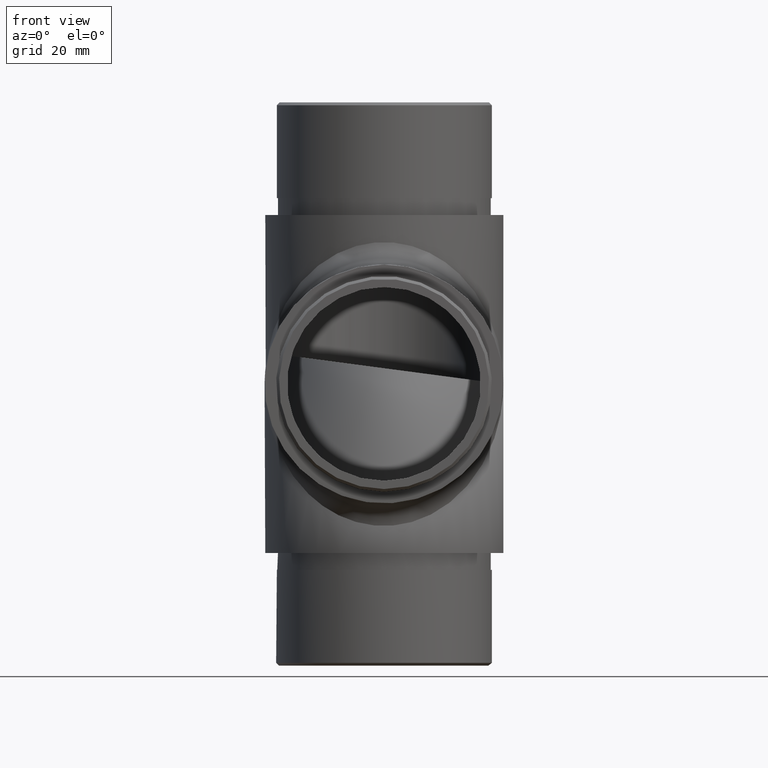
[diagram: clean part render]
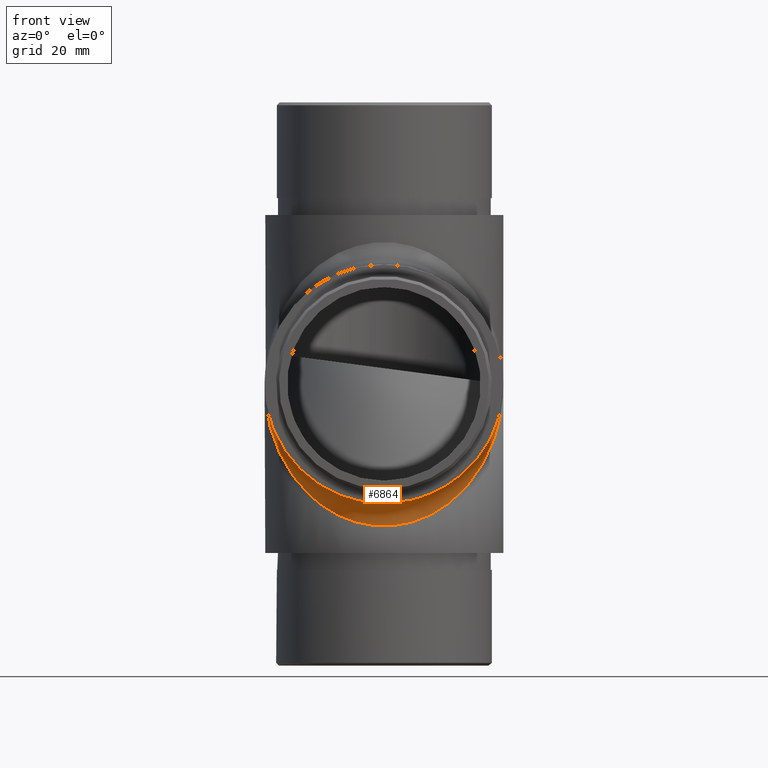
[diagram: same view with one face highlighted and labeled with its STEP entity id]
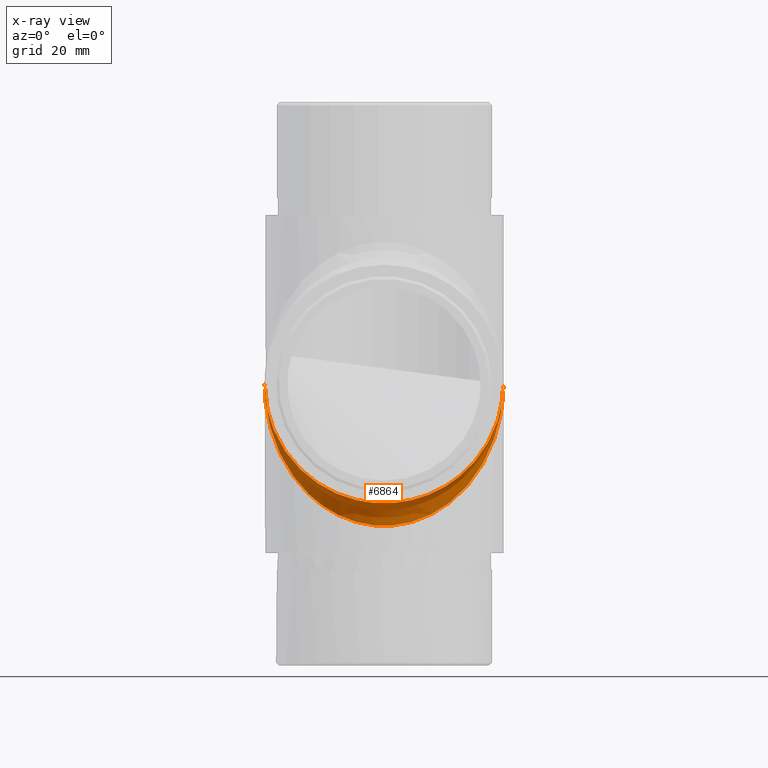
[diagram: x-ray of the same camera — body ghosted, the highlighted face saturated]
A machine part, front view. The second image highlights one B-rep face of the part: STEP entity #6864.
The next image is the same camera in x-ray: the body ghosted, the highlighted face saturated — about 1% of this face is hidden behind the body in this view.
In plain terms, the highlighted face is a freeform B-spline surface patch.
Its self-contained STEP definition (entity closure, byte-faithful):
#321 = CARTESIAN_POINT ( 'NONE',  ( 21.19999999999983600, 48.35064514730333200, -1.387552495144170000 ) ) ;
#361 = CARTESIAN_POINT ( 'NONE',  ( 18.39802989917647500, 39.37560570782144300, -12.62899698881823300 ) ) ;
#385 = CARTESIAN_POINT ( 'NONE',  ( -21.19999999999999900, 50.00000000000568400, 0.0000000000000000000 ) ) ;
#447 = CARTESIAN_POINT ( 'NONE',  ( 10.62439429223167400, 28.13064370479583700, -18.39802989914491200 ) ) ;
#496 = CARTESIAN_POINT ( 'NONE',  ( -9.394805574708801300, 30.94474123870976400, -22.65059060304992000 ) ) ;
#537 = CARTESIAN_POINT ( 'NONE',  ( -1.387536754975533500, 24.80000000000568900, -21.19999999999999600 ) ) ;
#574 = CARTESIAN_POINT ( 'NONE',  ( -2.775039201434166300, 24.96244141464882900, -21.06334293688769700 ) ) ;
#620 = CARTESIAN_POINT ( 'NONE',  ( -4.558171072702206700, 29.24272865596869100, -20.75727134403984000 ) ) ;
#662 = CARTESIAN_POINT ( 'NONE',  ( -21.19999999999594600, 48.48156063010508600, -1.518439369905425900 ) ) ;
#1328 = CARTESIAN_POINT ( 'NONE',  ( 21.06334293691916700, 47.22496079873050700, -3.298631503401883200 ) ) ;
#1412 = CARTESIAN_POINT ( 'NONE',  ( 21.19999999999999900, 50.00000000000568400, 0.0000000000000000000 ) ) ;
#1420 = CARTESIAN_POINT ( 'NONE',  ( 11.77272424252483200, 32.26062658822554900, -17.73937341178313400 ) ) ;
#1469 = CARTESIAN_POINT ( 'NONE',  ( 21.19999999999999200, 50.00000000000239500, -2.837897049507503800E-012 ) ) ;
#1495 = CARTESIAN_POINT ( 'NONE',  ( 21.19999999999999200, -0.3999999999891867800, -42.39999999999999100 ) ) ;
#1513 = CARTESIAN_POINT ( 'NONE',  ( 6.830971957570583600, 29.88276658282287500, -23.91293783551640200 ) ) ;
#1556 = CARTESIAN_POINT ( 'NONE',  ( 1.387536754975436700, 28.80000000000568900, -25.19999999999999600 ) ) ;
#1600 = CARTESIAN_POINT ( 'NONE',  ( -20.11723341722796800, 41.88016540905808000, -6.830971957461669000 ) ) ;
#1646 = CARTESIAN_POINT ( 'NONE',  ( -16.11916415239848300, 36.09608611141842300, -13.90391388858879800 ) ) ;
#1687 = CARTESIAN_POINT ( 'NONE',  ( -20.39372171538633400, 43.99026340463977600, -6.009736595382612700 ) ) ;
#2186 = VERTEX_POINT ( 'NONE', #4197 ) ;
#2378 = CARTESIAN_POINT ( 'NONE',  ( 21.03526683213804900, 46.95376771971087500, -3.046232280295345400 ) ) ;
#2511 = CARTESIAN_POINT ( 'NONE',  ( 15.97180040982549800, 33.34716588516198500, -14.00952711248422100 ) ) ;
#2549 = CARTESIAN_POINT ( 'NONE',  ( 18.66376453321552400, 39.79218389911223900, -10.20781610090091900 ) ) ;
#2603 = CARTESIAN_POINT ( 'NONE',  ( 2.239409227889045200, 28.87991635416064200, -21.12008364584796300 ) ) ;
#2642 = CARTESIAN_POINT ( 'NONE',  ( -1.125737368068754600, 28.80000000000568900, -21.19999999999999600 ) ) ;
#2688 = CARTESIAN_POINT ( 'NONE',  ( -5.738669216343343900, 29.51950870255069900, -20.48049129745173500 ) ) ;
#2727 = CARTESIAN_POINT ( 'NONE',  ( -18.66376453321944200, 39.79218389911218900, -10.20781610089901500 ) ) ;
#2774 = CARTESIAN_POINT ( 'NONE',  ( -12.93969731450020600, 33.08453572048230000, -16.91546427951591300 ) ) ;
#3084 =( BOUNDED_SURFACE ( )  B_SPLINE_SURFACE ( 3, 2, ( 
 ( #1469, #4462, #5707 ),
 ( #5572, #11929, #321 ),
 ( #1328, #2378, #9686 ),
 ( #7612, #6706, #11843 ),
 ( #10792, #8770, #11798 ),
 ( #12932, #2549, #4508 ),
 ( #361, #12892, #9780 ),
 ( #6615, #9869, #5528 ),
 ( #8683, #3513, #2511 ),
 ( #7665, #10840, #5657 ),
 ( #6658, #1420, #8729 ),
 ( #12971, #4553, #447 ),
 ( #9825, #3560, #7748 ),
 ( #1513, #8818, #3606 ),
 ( #4641, #11977, #4872 ),
 ( #12191, #2603, #4786 ),
 ( #1556, #7927, #3692 ),
 ( #5921, #2642, #537 ),
 ( #7971, #13139, #574 ),
 ( #3815, #620, #9033 ),
 ( #6746, #2688, #12019 ),
 ( #496, #8904, #12068 ),
 ( #5749, #13100, #7793 ),
 ( #8858, #7888, #7844 ),
 ( #4738, #2774, #9960 ),
 ( #9910, #5832, #12107 ),
 ( #11014, #1646, #6830 ),
 ( #13180, #6871, #10037 ),
 ( #5791, #2727, #12152 ),
 ( #8947, #9996, #1600 ),
 ( #3736, #1687, #8992 ),
 ( #3650, #11053, #10969 ),
 ( #6913, #662, #4691 ),
 ( #13062, #3774, #6788 ) ),
 .UNSPECIFIED., .F., .F., .T. ) 
 B_SPLINE_SURFACE_WITH_KNOTS ( ( 4, 2, 2, 2, 2, 2, 2, 2, 2, 2, 2, 2, 2, 2, 2, 2, 4 ),
 ( 3, 3 ),
 ( 4.712388980384802500, 4.908738521234150600, 5.105088062083497700, 5.301437602932845800, 5.497787143782193900, 5.694136684631542000, 5.890486225480890100, 6.086835766330238200, 6.283185307179586200, 6.479534848028934300, 6.675884388878282400, 6.872233929727630500, 7.068583470576978600, 7.264933011426326600, 7.461282552275674700, 7.657632093125021900, 7.853981633974370000 ),
 ( 0.0000000000000000000, 1.000000000000000000 ),
 .UNSPECIFIED. ) 
 GEOMETRIC_REPRESENTATION_ITEM ( )  RATIONAL_B_SPLINE_SURFACE ( (
 ( 1.000000000000000000, 1.000000000000000000, 1.000000000000000000),
 ( 1.000000000000000000, 1.000009746408428800, 1.000000000000000000),
 ( 1.000000000000000000, 0.9967613244637724100, 1.000000000000000000),
 ( 1.000000000000000000, 0.9841171504839706400, 1.000000000000000000),
 ( 1.000000000000000000, 0.9747108043704241200, 1.000000000000000000),
 ( 1.000000000000000000, 0.9506740353918965400, 1.000000000000000000),
 ( 1.000000000000000000, 0.9360421842821737800, 1.000000000000000000),
 ( 1.000000000000000000, 0.9031650994042343900, 1.000000000000000000),
 ( 1.000000000000000000, 0.8849191471497736000, 1.000000000000000000),
 ( 1.000000000000000000, 0.8471316604191191400, 1.000000000000000000),
 ( 1.000000000000000000, 0.8275942696178721900, 1.000000000000000000),
 ( 1.000000000000000000, 0.7902180086254813100, 1.000000000000000000),
 ( 1.000000000000000000, 0.7723968218425874000, 1.000000000000000000),
 ( 1.000000000000000000, 0.7418334178546246400, 1.000000000000000000),
 ( 1.000000000000000000, 0.7291288940370769200, 1.000000000000000000),
 ( 1.000000000000000000, 0.7117460025062424300, 1.000000000000000000),
 ( 1.000000000000000000, 0.7071067811865475700, 1.000000000000000000),
 ( 1.000000000000000000, 0.7071067811865475700, 1.000000000000000000),
 ( 1.000000000000000000, 0.7117460025057755800, 1.000000000000000000),
 ( 1.000000000000000000, 0.7291288940375428900, 1.000000000000000000),
 ( 1.000000000000000000, 0.7418334178547216800, 1.000000000000000000),
 ( 1.000000000000000000, 0.7723968218424883700, 1.000000000000000000),
 ( 1.000000000000000000, 0.7902180086253759500, 1.000000000000000000),
 ( 1.000000000000000000, 0.8275942696179762200, 1.000000000000000000),
 ( 1.000000000000000000, 0.8471316604192293800, 1.000000000000000000),
 ( 1.000000000000000000, 0.8849191471496593600, 1.000000000000000000),
 ( 1.000000000000000000, 0.9031650994043527400, 1.000000000000000000),
 ( 1.000000000000000000, 0.9360421842820541000, 1.000000000000000000),
 ( 1.000000000000000000, 0.9506740353918959900, 1.000000000000000000),
 ( 1.000000000000000000, 0.9747108043704235700, 1.000000000000000000),
 ( 1.000000000000000000, 0.9841171504840988700, 1.000000000000000000),
 ( 1.000000000000000000, 0.9967613244636441800, 1.000000000000000000),
 ( 1.000000000000000000, 1.000009746408524700, 1.000000000000000000),
 ( 1.000000000000000000, 1.000000000000000000, 1.000000000000000000) ) ) 
 REPRESENTATION_ITEM ( '' )  SURFACE ( )  );
#3230 = ORIENTED_EDGE ( 'NONE', *, *, #9424, .F. ) ;
#3513 = CARTESIAN_POINT ( 'NONE',  ( 15.10869200124107400, 35.00658604097094400, -14.99341395903101100 ) ) ;
#3560 = CARTESIAN_POINT ( 'NONE',  ( 8.158931141551621000, 30.34716571671101800, -19.65283428330056000 ) ) ;
#3606 = CARTESIAN_POINT ( 'NONE',  ( 6.830971957572164600, 26.08706216448928600, -20.11723341718202800 ) ) ;
#3650 = CARTESIAN_POINT ( 'NONE',  ( -21.06334293691931200, 47.22496079873124600, -3.298631503402912600 ) ) ;
#3692 = CARTESIAN_POINT ( 'NONE',  ( 1.387536754975495800, 24.80000000000568900, -21.19999999999999600 ) ) ;
#3736 = CARTESIAN_POINT ( 'NONE',  ( -20.52195295217648100, 44.50320954779044800, -6.533920726214829800 ) ) ;
#3774 = CARTESIAN_POINT ( 'NONE',  ( -21.19999999999999200, 50.00000000000265700, -2.577138007417373900E-012 ) ) ;
#3815 = CARTESIAN_POINT ( 'NONE',  ( -5.496790452048868400, 29.47804704779632300, -24.39401954696609600 ) ) ;
#4197 = CARTESIAN_POINT ( 'NONE',  ( -21.19999999999999900, 50.00000000000568400, 0.0000000000000000000 ) ) ;
#4462 = CARTESIAN_POINT ( 'NONE',  ( 21.19999999999999200, 50.00000000000262900, -2.612667124943416000E-012 ) ) ;
#4508 = CARTESIAN_POINT ( 'NONE',  ( 19.05525876124922000, 38.83258959974883600, -9.394805574821447200 ) ) ;
#4553 = CARTESIAN_POINT ( 'NONE',  ( 9.380193309309126100, 30.88439283652687100, -19.11560716347525700 ) ) ;
#4641 = CARTESIAN_POINT ( 'NONE',  ( 5.496790452048207600, 29.47804704779619600, -24.39401954696608500 ) ) ;
#4691 = CARTESIAN_POINT ( 'NONE',  ( -21.19999999999983900, 48.35064514729015900, -1.387552495128024900 ) ) ;
#4738 = CARTESIAN_POINT ( 'NONE',  ( -14.00952711248037600, 34.02819959017624300, -18.98534765696380300 ) ) ;
#4786 = CARTESIAN_POINT ( 'NONE',  ( 2.775039201433650200, 24.96244141464883600, -21.06334293688780300 ) ) ;
#4792 = FACE_OUTER_BOUND ( 'NONE', #11255, .T. ) ;
#4872 = CARTESIAN_POINT ( 'NONE',  ( 5.496790452049651800, 25.60598045303959900, -20.52195295220926500 ) ) ;
#5528 = CARTESIAN_POINT ( 'NONE',  ( 16.85628166244803300, 34.62825724463309000, -12.93178358785151100 ) ) ;
#5572 = CARTESIAN_POINT ( 'NONE',  ( 21.20000000000014900, 48.61244750487917800, -1.649354852718622800 ) ) ;
#5657 = CARTESIAN_POINT ( 'NONE',  ( 14.00952711248252300, 31.01465234304550100, -15.97180040982699000 ) ) ;
#5707 = CARTESIAN_POINT ( 'NONE',  ( 21.19999999999999200, 50.00000000000284900, -2.387437200379328700E-012 ) ) ;
#5749 = CARTESIAN_POINT ( 'NONE',  ( -10.62439429223018500, 31.60197010085957100, -21.86935629521315500 ) ) ;
#5791 = CARTESIAN_POINT ( 'NONE',  ( -19.05525876125052100, 40.60519442518663200, -11.16741040025886500 ) ) ;
#5832 = CARTESIAN_POINT ( 'NONE',  ( -15.10869200124624700, 35.00658604097783000, -14.99341395903441800 ) ) ;
#5921 = CARTESIAN_POINT ( 'NONE',  ( -1.387536754975474500, 28.80000000000568900, -25.19999999999999600 ) ) ;
#6154 = CARTESIAN_POINT ( 'NONE',  ( 21.19999999999999900, 50.00000000000568400, 0.0000000000000000000 ) ) ;
#6615 = CARTESIAN_POINT ( 'NONE',  ( 16.85628166244898200, 37.06821641215512400, -15.37174275537260100 ) ) ;
#6658 = CARTESIAN_POINT ( 'NONE',  ( 12.93178358779863000, 33.14371833752235100, -20.03671216483956400 ) ) ;
#6706 = CARTESIAN_POINT ( 'NONE',  ( 20.39372171537823800, 43.99026340463152700, -6.009736595372695300 ) ) ;
#6746 = CARTESIAN_POINT ( 'NONE',  ( -6.830971957569199800, 29.88276658282230300, -23.91293783551950400 ) ) ;
#6788 = CARTESIAN_POINT ( 'NONE',  ( -21.19999999999999200, 50.00000000000289200, -2.354970937812428000E-012 ) ) ;
#6830 = CARTESIAN_POINT ( 'NONE',  ( -16.85628166244714200, 34.62825724463304800, -12.93178358785283100 ) ) ;
#6864 = ADVANCED_FACE ( 'NONE', ( #4792 ), #3084, .F. ) ;
#6871 = CARTESIAN_POINT ( 'NONE',  ( -17.88959957407530900, 38.48824466618008700, -11.51175533382340000 ) ) ;
#6913 = CARTESIAN_POINT ( 'NONE',  ( -21.20000000000015200, 48.61244750486026300, -1.649354852702626500 ) ) ;
#6980 = CARTESIAN_POINT ( 'NONE',  ( 21.19999999999999900, 50.00000000000568400, 0.0000000000000000000 ) ) ;
#7272 = VERTEX_POINT ( 'NONE', #6154 ) ;
#7612 = CARTESIAN_POINT ( 'NONE',  ( 20.52195295217664000, 44.50320954779123600, -6.533920726215804100 ) ) ;
#7665 = CARTESIAN_POINT ( 'NONE',  ( 14.00952711248485500, 34.02819959018071900, -18.98534765696369000 ) ) ;
#7748 = CARTESIAN_POINT ( 'NONE',  ( 9.394805574706623500, 27.34940939695274100, -19.05525876129694400 ) ) ;
#7793 = CARTESIAN_POINT ( 'NONE',  ( -10.62439429222899400, 28.13064370479252900, -18.39802989914670300 ) ) ;
#7844 = CARTESIAN_POINT ( 'NONE',  ( -12.93178358780062400, 29.96328783516936100, -16.85628166248222100 ) ) ;
#7888 = CARTESIAN_POINT ( 'NONE',  ( -11.77272424252465100, 32.26062658821903300, -17.73937341178004700 ) ) ;
#7927 = CARTESIAN_POINT ( 'NONE',  ( 1.125737368068724200, 28.80000000000568900, -21.19999999999999600 ) ) ;
#7971 = CARTESIAN_POINT ( 'NONE',  ( -2.775039201434005100, 28.93665706311789200, -25.03755858535685900 ) ) ;
#8683 = CARTESIAN_POINT ( 'NONE',  ( 15.97180040982226500, 35.99047288751854300, -16.65283411484020000 ) ) ;
#8729 = CARTESIAN_POINT ( 'NONE',  ( 12.93178358779801200, 29.96328783516612000, -16.85628166248396200 ) ) ;
#8770 = CARTESIAN_POINT ( 'NONE',  ( 19.90922392697018100, 42.53796719159449000, -7.462032808403089100 ) ) ;
#8818 = CARTESIAN_POINT ( 'NONE',  ( 5.738669216345595500, 29.51950870254755100, -20.48049129745177100 ) ) ;
#8858 = CARTESIAN_POINT ( 'NONE',  ( -12.93178358779859800, 33.14371833752230900, -20.03671216483632700 ) ) ;
#8904 = CARTESIAN_POINT ( 'NONE',  ( -8.158931141553955200, 30.34716571670803700, -19.65283428330053500 ) ) ;
#8939 = EDGE_CURVE ( 'NONE', #7272, #2186, #11884, .T. ) ;
#8947 = CARTESIAN_POINT ( 'NONE',  ( -20.11723341722600700, 43.16902804254004200, -8.119834590945657700 ) ) ;
#8992 = CARTESIAN_POINT ( 'NONE',  ( -20.52195295217688900, 43.46607927378985900, -5.496790452211616400 ) ) ;
#9033 = CARTESIAN_POINT ( 'NONE',  ( -5.496790452049052300, 25.60598045303958900, -20.52195295220938900 ) ) ;
#9067 = CARTESIAN_POINT ( 'NONE',  ( 21.19999999999999600, 7.600000000005706200, -50.39999999999997700 ) ) ;
#9273 =( BOUNDED_CURVE ( )  B_SPLINE_CURVE ( 3, ( #385, #10065, #1495, #6980 ),
 .UNSPECIFIED., .F., .T. ) 
 B_SPLINE_CURVE_WITH_KNOTS ( ( 4, 4 ),
 ( 4.712388980384689700, 7.853981633974482800 ),
 .UNSPECIFIED. ) 
 CURVE ( )  GEOMETRIC_REPRESENTATION_ITEM ( )  RATIONAL_B_SPLINE_CURVE ( ( 1.000000000000000000, 0.3333333333333333700, 0.3333333333333333700, 1.000000000000000000 ) ) 
 REPRESENTATION_ITEM ( '' )  );
#9424 = EDGE_CURVE ( 'NONE', #2186, #7272, #9273, .T. ) ;
#9686 = CARTESIAN_POINT ( 'NONE',  ( 21.06334293691945100, 46.70136849660379900, -2.775039201275336400 ) ) ;
#9768 = ORIENTED_EDGE ( 'NONE', *, *, #8939, .F. ) ;
#9780 = CARTESIAN_POINT ( 'NONE',  ( 18.39802989917825500, 37.37100301118745400, -10.62439429218204600 ) ) ;
#9825 = CARTESIAN_POINT ( 'NONE',  ( 9.394805574707564900, 30.94474123870926300, -22.65059060305294700 ) ) ;
#9869 = CARTESIAN_POINT ( 'NONE',  ( 16.11916415240218100, 36.09608611141830200, -13.90391388858513400 ) ) ;
#9910 = CARTESIAN_POINT ( 'NONE',  ( -15.97180040982655700, 35.99047288752282000, -16.65283411484031700 ) ) ;
#9960 = CARTESIAN_POINT ( 'NONE',  ( -14.00952711248329400, 31.01465234303837400, -15.97180040982620100 ) ) ;
#9996 = CARTESIAN_POINT ( 'NONE',  ( -19.90922392696630900, 42.53796719159443300, -7.462032808405074200 ) ) ;
#10037 = CARTESIAN_POINT ( 'NONE',  ( -18.39802989917909300, 37.37100301118741200, -10.62439429218079900 ) ) ;
#10065 = CARTESIAN_POINT ( 'NONE',  ( -21.20000000000000300, -0.3999999999891798400, -42.39999999999998400 ) ) ;
#10071 = CARTESIAN_POINT ( 'NONE',  ( -21.19999999999998500, 7.600000000005700000, -50.39999999999999900 ) ) ;
#10792 = CARTESIAN_POINT ( 'NONE',  ( 20.11723341722602100, 43.16902804254009100, -8.119834590945590200 ) ) ;
#10840 = CARTESIAN_POINT ( 'NONE',  ( 12.93969731450554200, 33.08453572048944100, -16.91546427951953300 ) ) ;
#10969 = CARTESIAN_POINT ( 'NONE',  ( -21.06334293691925200, 46.70136849660377000, -2.775039201276324100 ) ) ;
#11014 = CARTESIAN_POINT ( 'NONE',  ( -16.85628166244780200, 37.06821641215337600, -15.37174275537264400 ) ) ;
#11053 = CARTESIAN_POINT ( 'NONE',  ( -21.03526683213013000, 46.95376771970310900, -3.046232280285232200 ) ) ;
#11255 = EDGE_LOOP ( 'NONE', ( #9768, #3230 ) ) ;
#11798 = CARTESIAN_POINT ( 'NONE',  ( 20.11723341722798600, 41.88016540905815100, -6.830971957461610300 ) ) ;
#11843 = CARTESIAN_POINT ( 'NONE',  ( 20.52195295217670400, 43.46607927378988700, -5.496790452212557900 ) ) ;
#11884 =( BOUNDED_CURVE ( )  B_SPLINE_CURVE ( 3, ( #1412, #9067, #10071, #12057 ),
 .UNSPECIFIED., .F., .T. ) 
 B_SPLINE_CURVE_WITH_KNOTS ( ( 4, 4 ),
 ( 4.712388980384689700, 7.853981633974482800 ),
 .UNSPECIFIED. ) 
 CURVE ( )  GEOMETRIC_REPRESENTATION_ITEM ( )  RATIONAL_B_SPLINE_CURVE ( ( 1.000000000000000000, 0.3333333333333333700, 0.3333333333333333700, 1.000000000000000000 ) ) 
 REPRESENTATION_ITEM ( '' )  );
#11929 = CARTESIAN_POINT ( 'NONE',  ( 21.19999999999594600, 48.48156063010579700, -1.518439369904714100 ) ) ;
#11977 = CARTESIAN_POINT ( 'NONE',  ( 4.558171072700815800, 29.24272865596881500, -20.75727134403396000 ) ) ;
#12019 = CARTESIAN_POINT ( 'NONE',  ( -6.830971957570780800, 26.08706216448618400, -20.11723341718260000 ) ) ;
#12057 = CARTESIAN_POINT ( 'NONE',  ( -21.19999999999999900, 50.00000000000568400, 0.0000000000000000000 ) ) ;
#12068 = CARTESIAN_POINT ( 'NONE',  ( -9.394805574707856300, 27.34940939695576400, -19.05525876129643900 ) ) ;
#12107 = CARTESIAN_POINT ( 'NONE',  ( -15.97180040982453300, 33.34716588516887700, -14.00952711248519800 ) ) ;
#12152 = CARTESIAN_POINT ( 'NONE',  ( -19.05525876124919500, 38.83258959974876500, -9.394805574821502200 ) ) ;
#12191 = CARTESIAN_POINT ( 'NONE',  ( 2.775039201434748500, 28.93665706311804100, -25.03755858535684800 ) ) ;
#12892 = CARTESIAN_POINT ( 'NONE',  ( 17.88959957407157800, 38.48824466617998800, -11.51175533382716200 ) ) ;
#12932 = CARTESIAN_POINT ( 'NONE',  ( 19.05525876125054600, 40.60519442518668100, -11.16741040025879700 ) ) ;
#12971 = CARTESIAN_POINT ( 'NONE',  ( 10.62439429223021900, 31.60197010085959900, -21.86935629520984700 ) ) ;
#13062 = CARTESIAN_POINT ( 'NONE',  ( -21.19999999999999200, 50.00000000000243000, -2.799305077022320200E-012 ) ) ;
#13100 = CARTESIAN_POINT ( 'NONE',  ( -9.380193309308928900, 30.88439283653345100, -19.11560716347872100 ) ) ;
#13139 = CARTESIAN_POINT ( 'NONE',  ( -2.239409227886025800, 28.87991635416051700, -21.12008364584218300 ) ) ;
#13180 = CARTESIAN_POINT ( 'NONE',  ( -18.39802989917760100, 39.37560570782311900, -12.62899698881827800 ) ) ;